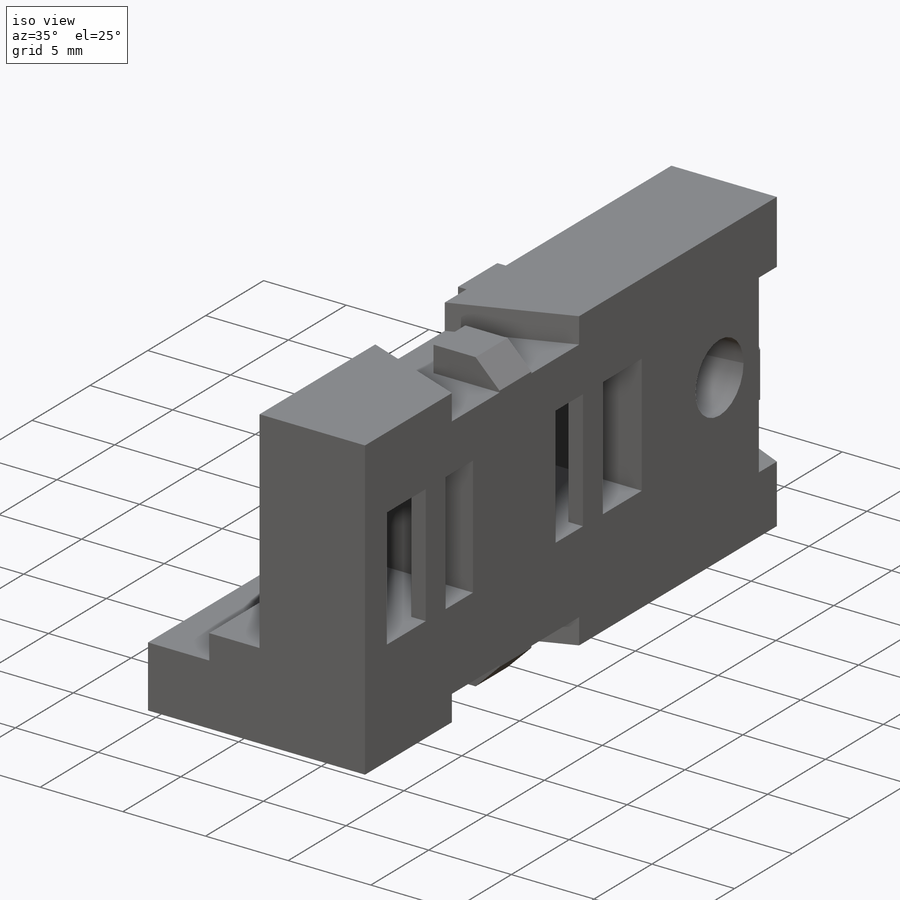
[diagram: iso view]
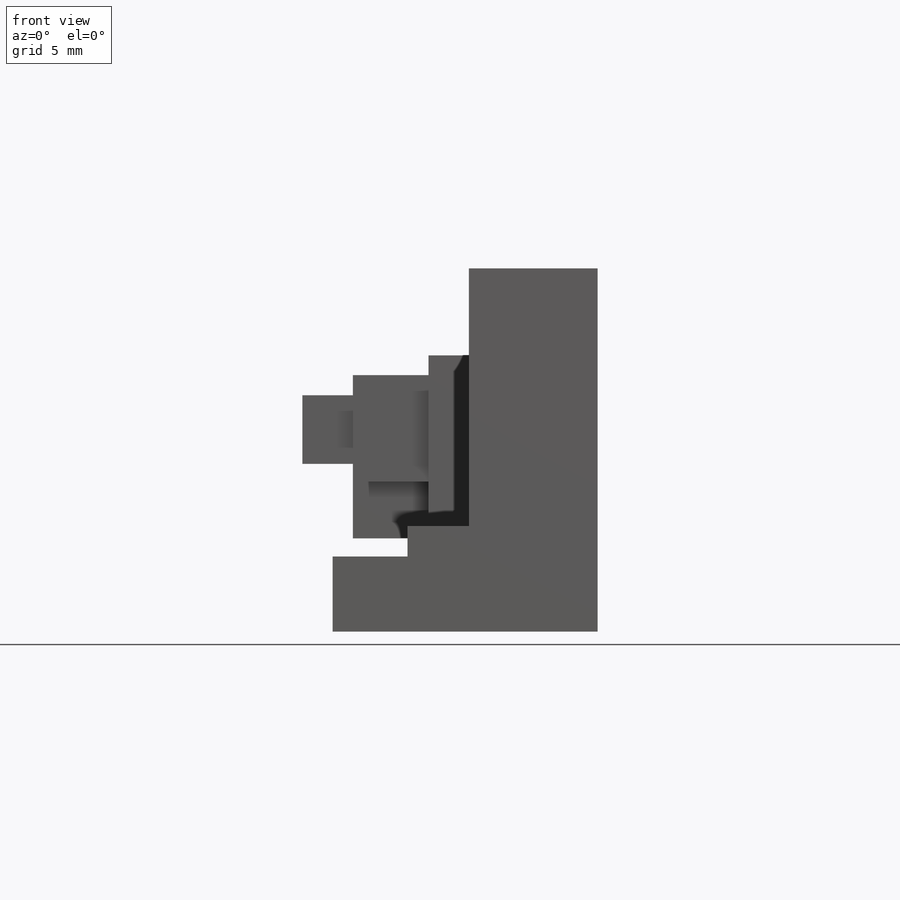
[diagram: front view]
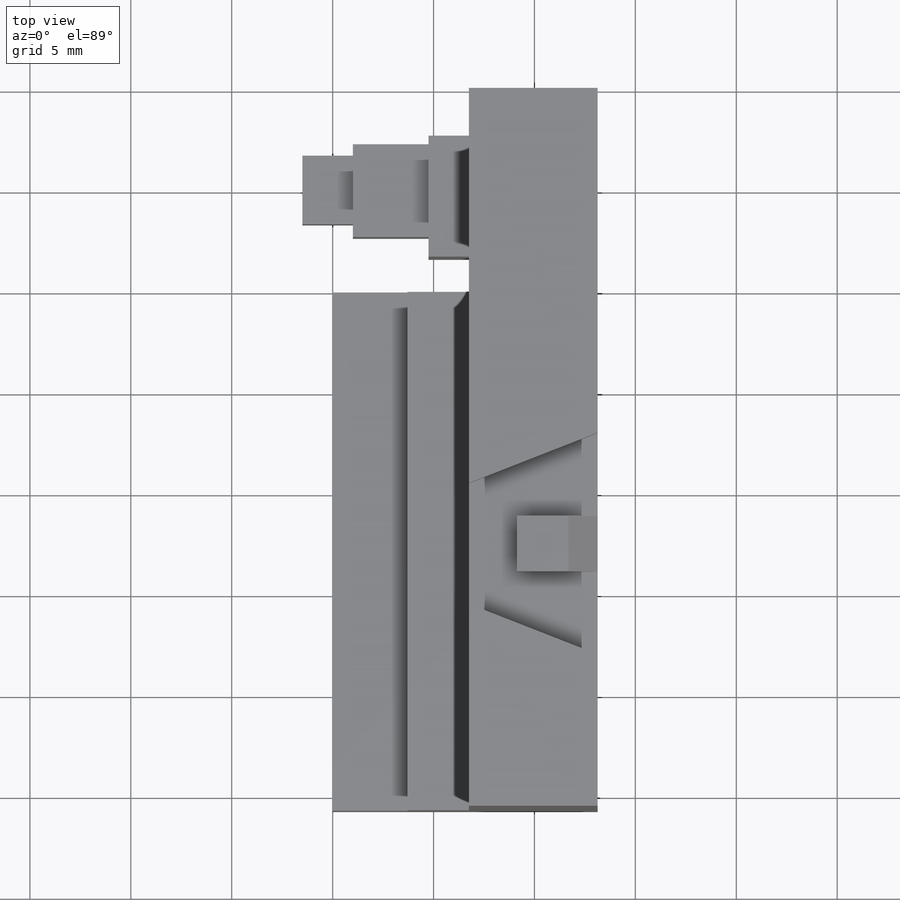
[diagram: top view]
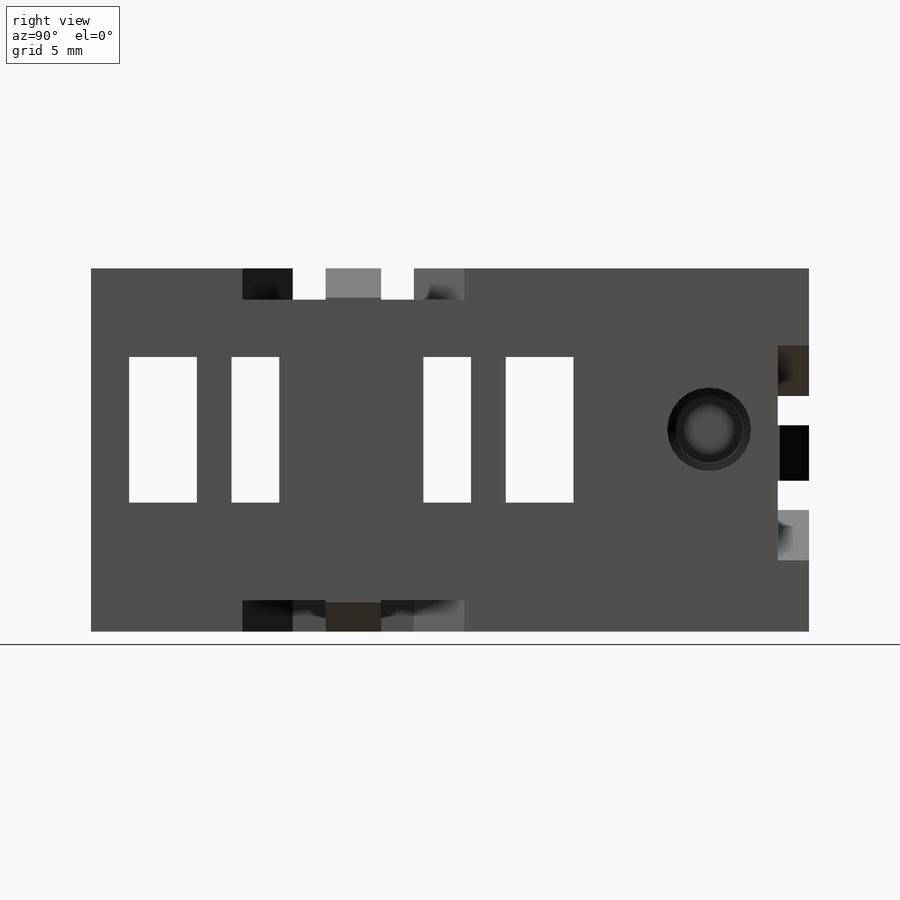
[diagram: right view]
SOLIDWORKS PART (.sldprt)
format: sldprt  version: not decoded by parser v0  size: 449,536 bytes
history: native  units: mm
features: sketch x10, extrude x5, cut_extrude x5, chamfer x3, material x1, plane x1, mirror x1 (+13 scaffold rows collapsed; 1 parser-record rows omitted)
feature tree (40):
  scaffold x13  (default folders/planes/origin — collapsed)
  material  "Material <not specified>"
  sketch  "Sketch1"  dims[D1=18.0mm D2=6.38mm D3=13.13mm D4=12.78mm D5=3.72mm D6=3.71mm]
  extrude  "Boss-Extrude1"  Depth=25.69mm
  sketch  "Sketch9"  dims[c1.D1=7.22mm c1.D2=7.22mm c1.D3=7.22mm c1.D4=7.22mm c1.D5=6.0mm c1.D6=8.32mm c1.D7=4.6mm c1.D8=7.34mm c1.D9=4.31mm c1.D10=2.29mm c1.D11=3.4mm c1.D12=3.4mm c1.D13=~2.483905mm c1.D14=~2.483905mm c2.D5=7.36mm c2.D6=2.005mm c2.D7=1.17mm c2.D8=1.17mm]
  cut_extrude  "Cut-Extrude3"  Depth=5.5mm
  sketch  "Sketch3"
  extrude  "Boss-Extrude2"  Depth=9.89mm
  parser-record x1  (decoder bookkeeping rows leaked as tree rows — omitted from the tree; the rows remain in map.json)
  plane  "Plane1"  Offset=9mm
  sketch  "Sketch2"  dims[c1.D1=9.87mm c1.D2=7.73mm c1.D3=8.09mm c2.D1=7.5mm c2.D2=11.0mm c2.D3=10.0mm c2.D4=6.0mm c3.D2=0.25mm c3.D4=4.0mm c3.D5=1.375mm c4.D2=4.0mm]
  cut_extrude  "Cut-Extrude1"  Depth=1.55mm
  chamfer  "Chamfer1"  Distance=1.45mm Angle=45deg
  mirror  "Mirror3"
  sketch  "Sketch11"  dims[c1.D1=9.87mm c1.D2=7.73mm c1.D3=8.09mm c2.D1=7.5mm c2.D2=11.0mm c2.D3=10.0mm c2.D4=6.0mm c3.D2=0.25mm c3.D4=4.0mm c3.D5=1.375mm c4.D2=4.0mm c4.D4=0.0mm c4.D1=6.38mm c5.D1=~111.397706deg c5.D3=~6.852328mm c5.D6=3.53mm]
  cut_extrude  "Cut-Extrude4"  Depth=1.55mm
  chamfer  "Chamfer2"  Distance=1.45mm Angle=45deg
  sketch  "Sketch12"  dims[D1=4.31mm D2=9.07mm D3=6.0mm D4=2.29mm]
  extrude  "Boss-Extrude4"  Depth=2mm
  sketch  "Sketch13"  dims[D1=4.6mm D2=5.27mm D3=0.98mm D4=0.41mm D5=2.11mm D6=1.2mm]
  extrude  "Boss-Extrude5"  Depth=3.75mm
  sketch  "Sketch14"  dims[D1=3.4mm D2=3.4mm D3=1.0mm D4=0.55mm]
  extrude  "Boss-Extrude6"  Depth=2.5mm
  sketch  "Sketch15"  dims[c1.D13=3.3mm c1.D14=4.15mm c1.D1=1.89mm c1.D2=4.39mm c1.D3=11.61mm c1.D4=7.44mm c1.D5=7.22mm c1.D6=7.29mm c2.D5=7.44mm c2.D6=7.14mm c2.D7=3.36mm c2.D8=2.37mm c2.D9=3.36mm c2.D10=2.36mm c2.D11=7.99mm c2.D12=4.95mm]
  cut_extrude  "Cut-Extrude5"  Depth=11.63mm
  cut_extrude  "Cut-Extrude6"  [1 undecoded]
  sketch  "Sketch15<5>"  dims[D1=8.38mm]
  chamfer  "Chamfer3"  Distance=0.425mm Angle=45deg
decode coverage: 21 of 24 modeling features carry decoded parameters
note: ~ marks probable driven/reference dimensions
note: 1 parameter value undecoded
note: suppression state not decoded; provenance and decode notes live in map.json
